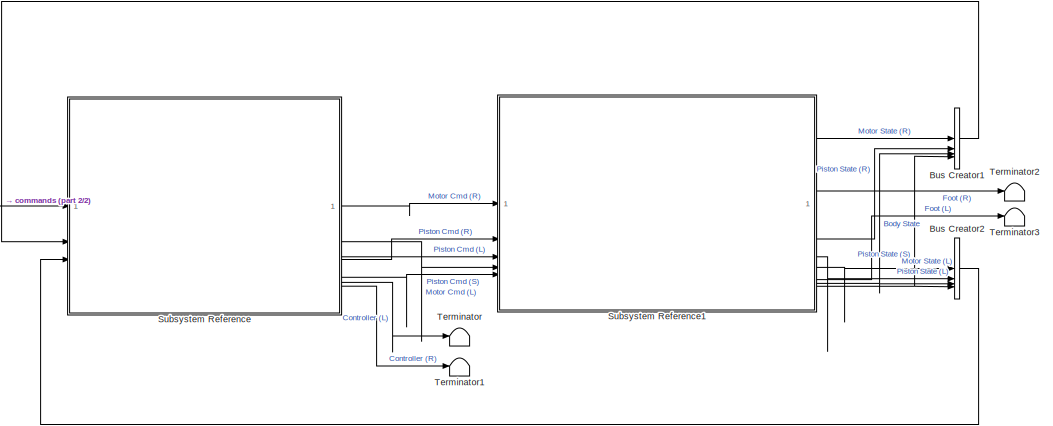
[diagram: root canvas - part 1/2, right side, full height]
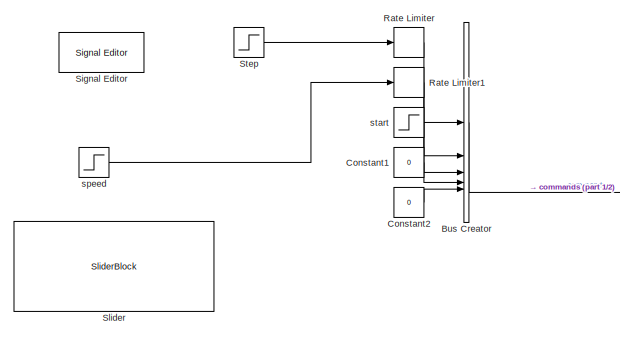
[diagram: root canvas - part 2/2, middle left region]
MODEL slx_f4465bfd2599
KIND model
CONFIG AbsTol = 1e-2
CONFIG EnableMultiTasking = off
CONFIG FixedStep = auto
CONFIG InitFcn = run('initBusObjects.m');\nrun("parameters.m");
CONFIG MaxStep = auto
CONFIG MinStep = auto
CONFIG RelTol = 1e-2
CONFIG SampleTimeConstraint = Unconstrained
CONFIG SolverName = VariableStepAuto
CONFIG StartTime = 0.0
CONFIG StopTime = 30
BLOCK [BusCreator] Bus Creator
  DisplayOption = bar
  InheritFromInputs = off
  Inputs = 5
  OutDataTypeStr = Bus: Command
BLOCK [BusCreator] Bus Creator1
  DisplayOption = bar
  InheritFromInputs = off
  Inputs = 4
  OutDataTypeStr = Bus: State
BLOCK [BusCreator] Bus Creator2
  DisplayOption = bar
  InheritFromInputs = off
  Inputs = 4
  OutDataTypeStr = Bus: State
BLOCK [Constant] Constant1
  Value = 0
BLOCK [Constant] Constant2
  Value = 0
BLOCK [RateLimiter] Rate Limiter
  FallingSlewLimit = -0.05
  RisingSlewLimit = 0.05
  SampleTimeMode = inherited
BLOCK [RateLimiter] Rate Limiter1
  FallingSlewLimit = -0.18
  RisingSlewLimit = 0.18
  SampleTimeMode = inherited
BLOCK [Reference] Signal Editor  REF=SignalEditorBlockLib/Signal Editor
  LibrarySourceBlock = simulink/Sources/Signal Editor
  SourceBlock = SignalEditorBlockLib/Signal Editor
  SourceType = SignalEditor
  UserDataPersistent = on
BLOCK [SliderBlock] Slider
  ScaleMax = 3
BLOCK [Step] Step
  After = 0.3
  Before = 0.3
  SampleTime = 0
BLOCK [SubSystem] Subsystem Reference
  ReferencedSubsystem = bounding_controller_spine
BLOCK [SubSystem] Subsystem Reference1
  ReferencedSubsystem = kemba_simulation_approx
BLOCK [Terminator] Terminator
BLOCK [Terminator] Terminator1
BLOCK [Terminator] Terminator2
BLOCK [Terminator] Terminator3
BLOCK [Step] speed
  After = 2.6
  SampleTime = 0
  Time = 4
BLOCK [Step] start
  SampleTime = 0
LINE Bus Creator1:1 -> Subsystem Reference:2
LINE Bus Creator2:1 -> Subsystem Reference:3
LINE Bus Creator:1 -> Subsystem Reference:1
LINE Constant1:1 -> Bus Creator:4
LINE Constant2:1 -> Bus Creator:5
LINE Rate Limiter1:1 -> Bus Creator:2
LINE Rate Limiter:1 -> Bus Creator:1
LINE Step:1 -> Rate Limiter:1
LINE Subsystem Reference1:1 -> Bus Creator1:1
LINE Subsystem Reference1:2 -> Bus Creator1:2
LINE Subsystem Reference1:3 -> Bus Creator2:2
LINE Subsystem Reference1:4 -> Bus Creator2:1
LINE Subsystem Reference1:5 -> Terminator2:1
LINE Subsystem Reference1:6 -> Terminator3:1
NET Subsystem Reference1:7 -> Bus Creator1:3, Bus Creator2:3
NET Subsystem Reference1:8 -> Bus Creator1:4, Bus Creator2:4
LINE Subsystem Reference:1 -> Subsystem Reference1:1
LINE Subsystem Reference:2 -> Subsystem Reference1:4
LINE Subsystem Reference:3 -> Subsystem Reference1:2
LINE Subsystem Reference:4 -> Subsystem Reference1:3
LINE Subsystem Reference:5 -> Subsystem Reference1:5
LINE Subsystem Reference:6 -> Terminator:1
LINE Subsystem Reference:7 -> Terminator1:1
LINE speed:1 -> Rate Limiter1:1
LINE start:1 -> Bus Creator:3
note: NET lines group one-source signal fan-out (src -> all destinations, sorted); 1:1 wires keep LINE
